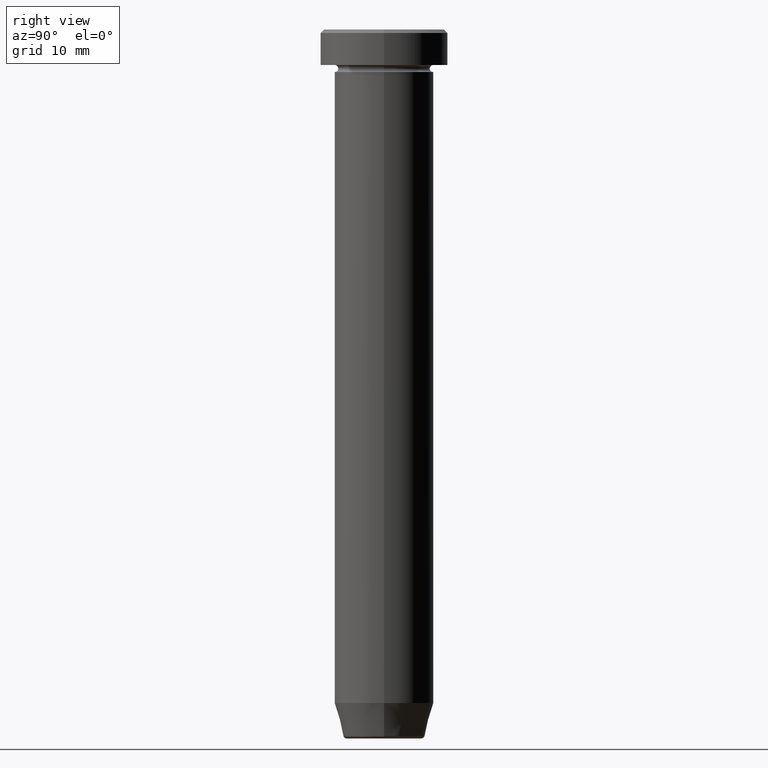
[diagram: clean part render]
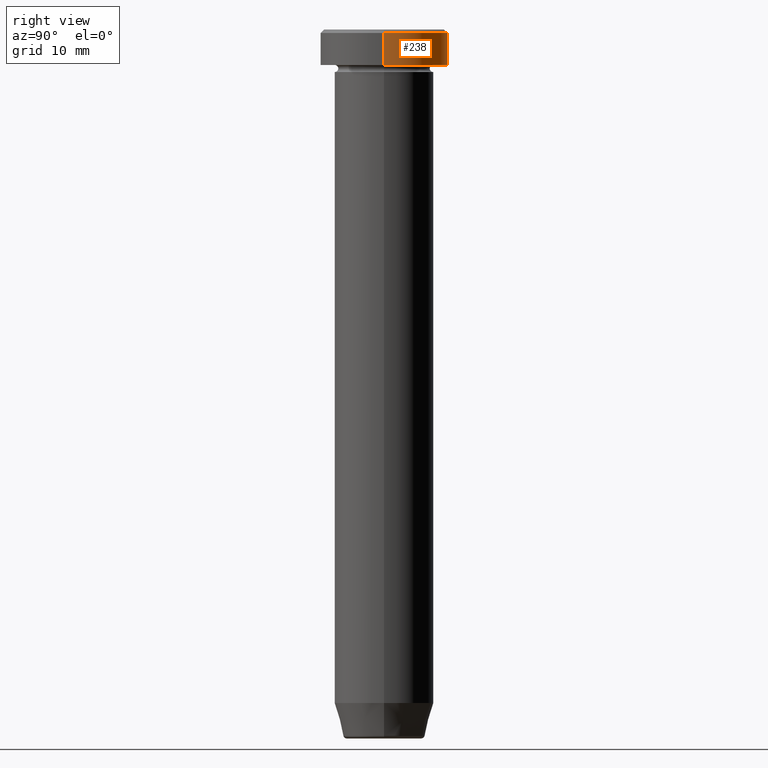
[diagram: same view with one face highlighted and labeled with its STEP entity id]
A machine part, right view. The second image highlights one B-rep face of the part: STEP entity #238.
In plain terms, the highlighted cylindrical surface (partial cylindrical patch) has radius 9 mm, axis along (-0, -0, 1).
Its self-contained STEP definition (entity closure, byte-faithful):
#4 = LINE ( 'NONE', #368, #203 ) ;
#31 = VERTEX_POINT ( 'NONE', #186 ) ;
#33 = EDGE_LOOP ( 'NONE', ( #93, #36, #115, #428 ) ) ;
#36 = ORIENTED_EDGE ( 'NONE', *, *, #47, .T. ) ;
#47 = EDGE_CURVE ( 'NONE', #463, #505, #330, .T. ) ;
#93 = ORIENTED_EDGE ( 'NONE', *, *, #577, .T. ) ;
#100 = CARTESIAN_POINT ( 'NONE',  ( 0.000000000000000000, 0.000000000000000000, -5.000000000000000000 ) ) ;
#115 = ORIENTED_EDGE ( 'NONE', *, *, #188, .T. ) ;
#127 = CARTESIAN_POINT ( 'NONE',  ( 0.000000000000000000, 0.000000000000000000, 0.000000000000000000 ) ) ;
#144 = CARTESIAN_POINT ( 'NONE',  ( 0.000000000000000000, 0.000000000000000000, -0.4999999999999987232 ) ) ;
#186 = CARTESIAN_POINT ( 'NONE',  ( 9.000000000000000000, 0.000000000000000000, -5.000000000000000000 ) ) ;
#188 = EDGE_CURVE ( 'NONE', #505, #237, #445, .T. ) ;
#203 = VECTOR ( 'NONE', #235, 1000.000000000000000 ) ;
#221 = DIRECTION ( 'NONE',  ( -0.000000000000000000, -0.000000000000000000, 1.000000000000000000 ) ) ;
#235 = DIRECTION ( 'NONE',  ( -0.000000000000000000, -0.000000000000000000, 1.000000000000000000 ) ) ;
#237 = VERTEX_POINT ( 'NONE', #256 ) ;
#238 = ADVANCED_FACE ( 'NONE', ( #359 ), #537, .T. ) ;
#256 = CARTESIAN_POINT ( 'NONE',  ( 9.000000000000000000, 0.000000000000000000, -0.4999999999999987232 ) ) ;
#257 = CARTESIAN_POINT ( 'NONE',  ( -9.000000000000000000, 1.102182119232617714E-15, -5.000000000000000000 ) ) ;
#270 = DIRECTION ( 'NONE',  ( -0.000000000000000000, -0.000000000000000000, 1.000000000000000000 ) ) ;
#282 = CARTESIAN_POINT ( 'NONE',  ( -9.000000000000000000, 1.102182119232617714E-15, 0.000000000000000000 ) ) ;
#311 = DIRECTION ( 'NONE',  ( -0.000000000000000000, -0.000000000000000000, 1.000000000000000000 ) ) ;
#330 = LINE ( 'NONE', #282, #407 ) ;
#359 = FACE_OUTER_BOUND ( 'NONE', #33, .T. ) ;
#363 = DIRECTION ( 'NONE',  ( 0.000000000000000000, 0.000000000000000000, -1.000000000000000000 ) ) ;
#368 = CARTESIAN_POINT ( 'NONE',  ( 9.000000000000000000, 0.000000000000000000, 0.000000000000000000 ) ) ;
#407 = VECTOR ( 'NONE', #221, 1000.000000000000000 ) ;
#415 = DIRECTION ( 'NONE',  ( 1.000000000000000000, 0.000000000000000000, 0.000000000000000000 ) ) ;
#422 = CARTESIAN_POINT ( 'NONE',  ( -9.000000000000000000, 1.102182119232617714E-15, -0.4999999999999987232 ) ) ;
#428 = ORIENTED_EDGE ( 'NONE', *, *, #553, .F. ) ;
#435 = AXIS2_PLACEMENT_3D ( 'NONE', #100, #270, #517 ) ;
#445 = CIRCLE ( 'NONE', #563, 9.000000000000000000 ) ;
#459 = AXIS2_PLACEMENT_3D ( 'NONE', #127, #311, #497 ) ;
#463 = VERTEX_POINT ( 'NONE', #257 ) ;
#497 = DIRECTION ( 'NONE',  ( 1.000000000000000000, 0.000000000000000000, 0.000000000000000000 ) ) ;
#505 = VERTEX_POINT ( 'NONE', #422 ) ;
#517 = DIRECTION ( 'NONE',  ( 1.000000000000000000, 0.000000000000000000, 0.000000000000000000 ) ) ;
#537 = CYLINDRICAL_SURFACE ( 'NONE', #459, 9.000000000000000000 ) ;
#552 = CIRCLE ( 'NONE', #435, 9.000000000000000000 ) ;
#553 = EDGE_CURVE ( 'NONE', #31, #237, #4, .T. ) ;
#563 = AXIS2_PLACEMENT_3D ( 'NONE', #144, #363, #415 ) ;
#577 = EDGE_CURVE ( 'NONE', #31, #463, #552, .T. ) ;